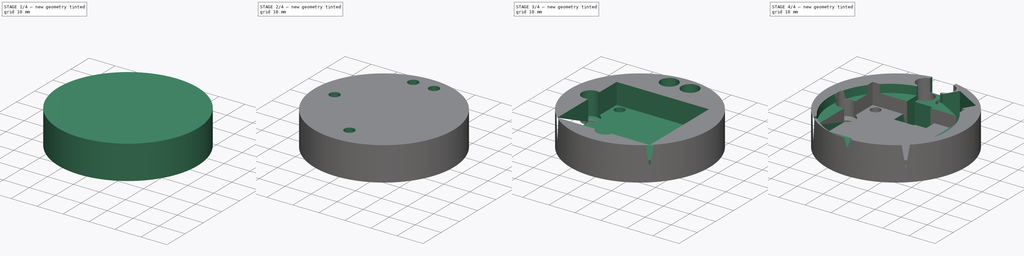
[diagram: build sequence overview — one tinted view per stage of 4, left to right]
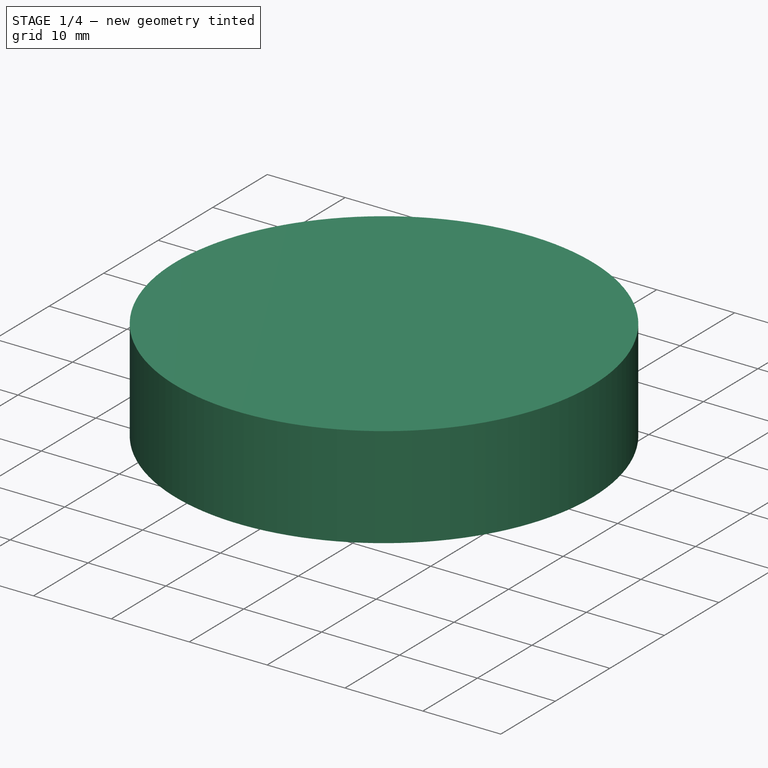
[diagram: stage 1 of 4 — iso view after this stage's code; geometry added in this stage tinted green]
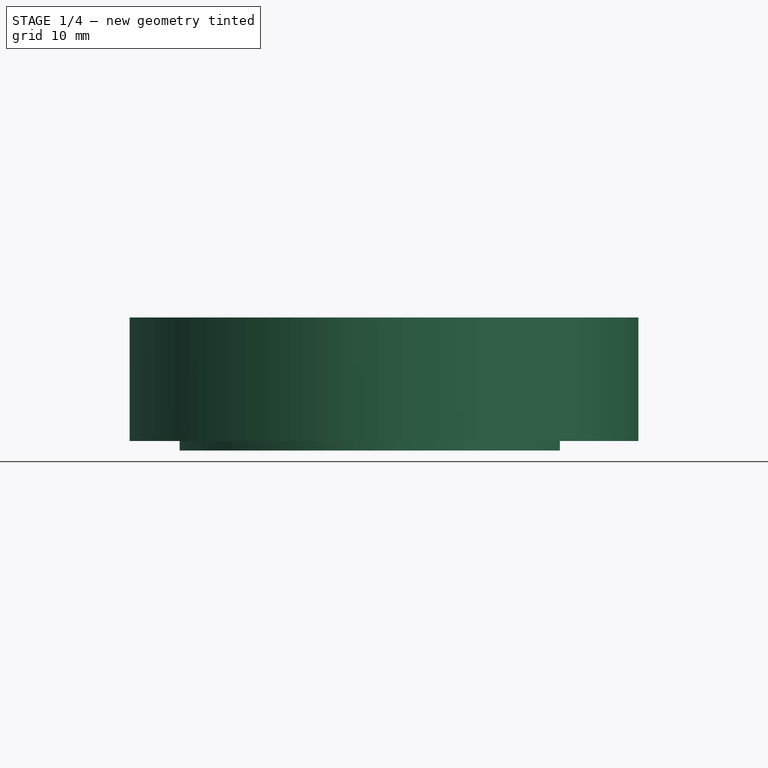
[diagram: stage 1 of 4 — front view after this stage's code; geometry added in this stage tinted green]
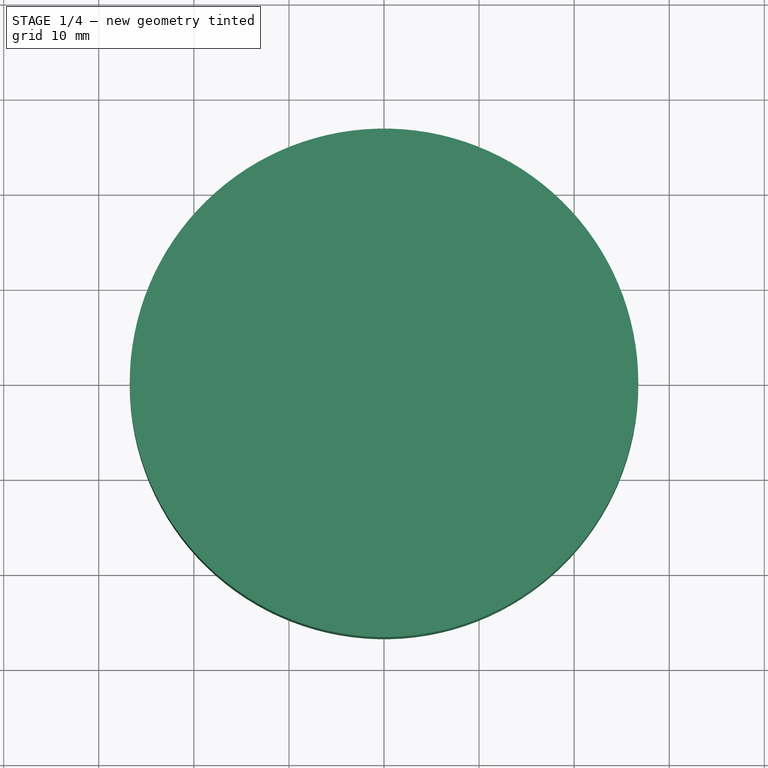
[diagram: stage 1 of 4 — top view after this stage's code; geometry added in this stage tinted green]
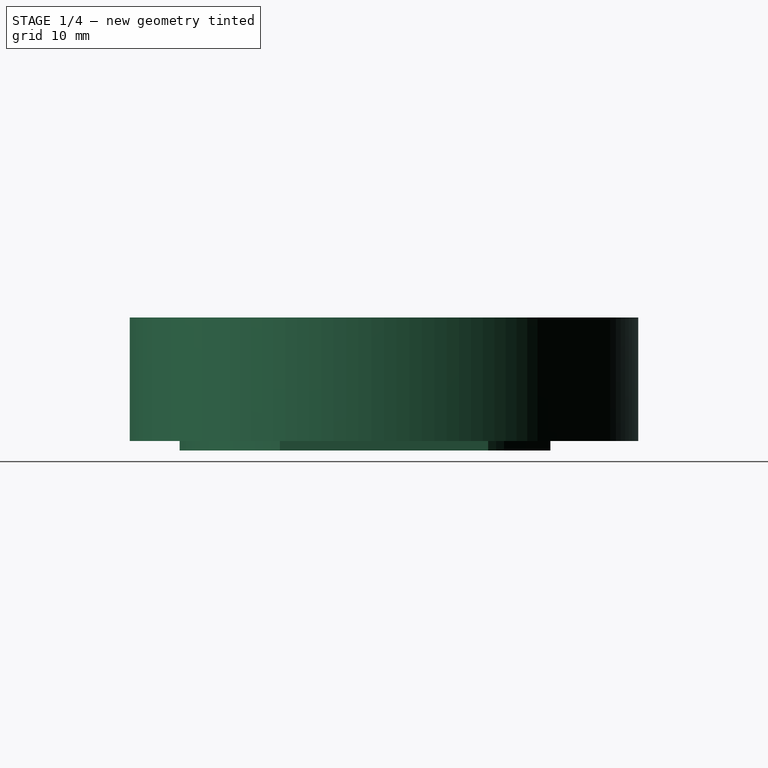
[diagram: stage 1 of 4 — right view after this stage's code; geometry added in this stage tinted green]
FCSTD DOCUMENT  (FreeCAD 0.18.1R)
Label: headset
License: All rights reserved
LicenseURL: http://en.wikipedia.org/wiki/All_rights_reserved
objects: Sketcher::SketchObject×13, PartDesign::Pocket×8, PartDesign::Pad×4, PartDesign::Plane×2, PartDesign::Body×2, PartDesign::Hole×2, PartDesign::ShapeBinder×1, PartDesign::Point×1
note: 47 computed .brp shape members not serialized (recipe doc carries the construction recipe); baked Part::Feature solids carry a one-line shape summary decoded from their .brp

FEATURE [Sketcher::SketchObject] Sketch
  MapMode = 5
  Support = -> [XY_Plane]
  sketch-geometry (1):
    g0: Circle CenterX=0 CenterY=0 CenterZ=0 NormalX=0 NormalY=0 NormalZ=1 AngleXU=0 Radius=21.5
  constraints (2):
    c: Coincident(g0,g-1)
    c: Diameter(g0) = 43
FEATURE [PartDesign::Pad] Pad
  Length = 1
  Length2 = 100
  Profile = -> Sketch
  Refine = true
  Reversed = true
  Type = 0
FEATURE [Sketcher::SketchObject] Sketch001
  ExternalGeometry = -> [Pad]
  MapMode = 5
  Support = -> [XY_Plane]
  sketch-geometry (12):
    g0: GeomPoint X=21.5 Y=0 Z=0
    g1: LineSegment StartX=-12.49 StartY=21.5 StartZ=0 EndX=12.49 EndY=21.5 EndZ=0
    g2: LineSegment StartX=12.49 StartY=21.5 StartZ=0 EndX=12.49 EndY=17.5 EndZ=0
    g3: LineSegment StartX=12.49 StartY=17.5 StartZ=0 EndX=-12.49 EndY=17.5 EndZ=0
    g4: LineSegment StartX=-12.49 StartY=17.5 StartZ=0 EndX=-12.49 EndY=21.5 EndZ=0
    g5: LineSegment StartX=18.5 StartY=10.9545 StartZ=0 EndX=22.5 EndY=10.9545 EndZ=0
    g6: LineSegment StartX=22.5 StartY=10.9545 StartZ=0 EndX=22.5 EndY=-10.9545 EndZ=0
    g7: LineSegment StartX=22.5 StartY=-10.9545 StartZ=0 EndX=18.5 EndY=-10.9545 EndZ=0
    g8: LineSegment StartX=18.5 StartY=-10.9545 StartZ=0 EndX=18.5 EndY=10.9545 EndZ=0
    g9: Circle CenterX=10.247 CenterY=8 CenterZ=0 NormalX=0 NormalY=0 NormalZ=1 AngleXU=0 Radius=2
    g10: Circle CenterX=10.247 CenterY=-8 CenterZ=0 NormalX=0 NormalY=0 NormalZ=1 AngleXU=0 Radius=2
    g11: GeomPoint X=0 Y=21.5 Z=0
  constraints (33):
    c: PointOnObject(g0,g-3)
    c: PointOnObject(g0,g-1)
    c: Coincident(g1,g2)
    c: Coincident(g2,g3)
    c: Coincident(g3,g4)
    c: Coincident(g4,g1)
    c: Horizontal(g1)
    c: Horizontal(g3)
    c: Vertical(g2)
    c: Vertical(g4)
    c: Coincident(g5,g6)
    c: Coincident(g6,g7)
    c: Coincident(g7,g8)
    c: Coincident(g8,g5)
    c: Horizontal(g5)
    c: Horizontal(g7)
    c: Vertical(g6)
    c: Vertical(g8)
    c: PointOnObject(g5,g-3)
    c: PointOnObject(g7,g-3)
    c: DistanceX(g5,g0) = 3
    c: DistanceX(g5,g5) = 4
    c: DistanceY(g2,g2) = 4
    c: Equal(g9,g10)
    c: DistanceY(g10,g9) = 16
    c: Diameter(g9) = 4
    c: Distance(g9,g-1) = 13
    c: Symmetric(g9,g10,g-1)
    c: PointOnObject(g3,g-3)
    c: PointOnObject(g2,g-3)
    c: PointOnObject(g11,g-3)
    c: PointOnObject(g11,g-2)
    c: DistanceY(g3,g11) = 4
FEATURE [PartDesign::Pocket] Pocket
  BaseFeature = -> Pad
  Length = 5
  Length2 = 100
  Profile = -> Sketch001
  Refine = true
  Type = 1
FEATURE [Sketcher::SketchObject] Sketch002
  ExternalGeometry = -> [Pocket]
  MapMode = 5
  Support = -> [Pocket]
  sketch-geometry (10):
    g0: LineSegment StartX=-10.5 StartY=10.5 StartZ=0 EndX=-10.5 EndY=-10.5 EndZ=0
    g1: LineSegment StartX=-10.5 StartY=-10.5 StartZ=0 EndX=-12.5 EndY=-10.5 EndZ=0
    g2: LineSegment StartX=-12.5 StartY=-10.5 StartZ=0 EndX=-12.5 EndY=10.5 EndZ=0
    g3: LineSegment StartX=-14.4 StartY=10.5 StartZ=0 EndX=-14.4 EndY=-10.5 EndZ=0
    g4: LineSegment StartX=-14.4 StartY=-10.5 StartZ=0 EndX=-16.4 EndY=-10.5 EndZ=0
    g5: LineSegment StartX=-16.4 StartY=-10.5 StartZ=0 EndX=-16.4 EndY=10.5 EndZ=0
    g6: LineSegment StartX=-14.4 StartY=10.5 StartZ=0 EndX=-12.5 EndY=10.5 EndZ=0
    g7: LineSegment StartX=-10.5 StartY=10.5 StartZ=0 EndX=-10.5 EndY=12.5 EndZ=0
    g8: LineSegment StartX=-10.5 StartY=12.5 StartZ=0 EndX=-16.4 EndY=12.5 EndZ=0
    g9: LineSegment StartX=-16.4 StartY=12.5 StartZ=0 EndX=-16.4 EndY=10.5 EndZ=0
  constraints (29):
    c: Coincident(g0,g1)
    c: Coincident(g1,g2)
    c: Horizontal(g1)
    c: Vertical(g0)
    c: Vertical(g2)
    c: Coincident(g3,g4)
    c: Coincident(g4,g5)
    c: Horizontal(g4)
    c: Vertical(g3)
    c: DistanceX(g1,g-3) = 31
    c: DistanceX(g2,g0) = 2
    c: DistanceX(g5,g3) = 2
    c: DistanceX(g3,g1) = 1.9
    c: DistanceY(g5,g5) = 21
    c: Horizontal(g3,g2)
    c: Horizontal(g3,g1)
    c: Symmetric(g5,g4,g-1)
    c: Coincident(g7,g8)
    c: Coincident(g8,g9)
    c: Horizontal(g8)
    c: Vertical(g7)
    c: Vertical(g9)
    c: Equal(g7,g1)
    c: Coincident(g3,g6)
    c: Coincident(g2,g6)
    c: Horizontal(g5,g3)
    c: Coincident(g5,g9)
    c: Coincident(g0,g7)
    c: Equal(g7,g9)
FEATURE [PartDesign::Pad] Pad001
  BaseFeature = -> Pocket
  Length = 2
  Length2 = 100
  Profile = -> Sketch002
  Refine = true
  Type = 0
FEATURE [PartDesign::Body] Body  label="base"
  Group = -> [Sketch,Pad,Sketch001,Pocket,Sketch002,Pad001,Sketch003,Pad002,DatumPlane,Sketch004,Pocket001]
  Origin = -> Origin
  Tip = -> Pocket001
FEATURE [Sketcher::SketchObject] Sketch005
  MapMode = 5
  Support = -> [XY_Plane001]
  sketch-geometry (1):
    g0: Circle CenterX=0 CenterY=0 CenterZ=0 NormalX=0 NormalY=0 NormalZ=1 AngleXU=0 Radius=26.75
  constraints (2):
    c: Coincident(g0,g-1)
    c: Diameter(g0) = 53.5
FEATURE [PartDesign::Pad] Pad003
  Length = 13
  Length2 = 100
  Profile = -> Sketch005
  Refine = true
  Type = 0
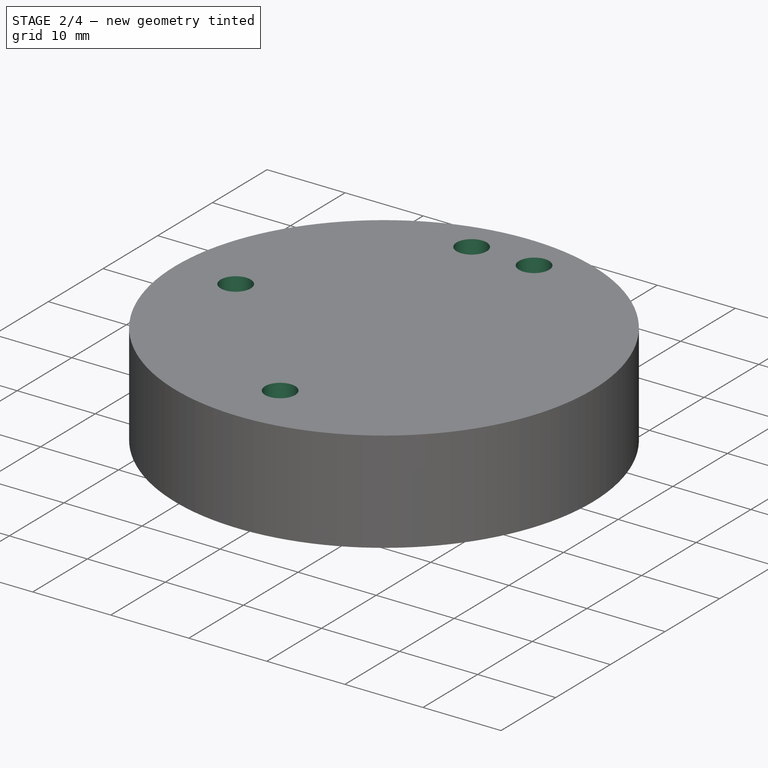
[diagram: stage 2 of 4 — iso view after this stage's code; geometry added in this stage tinted green]
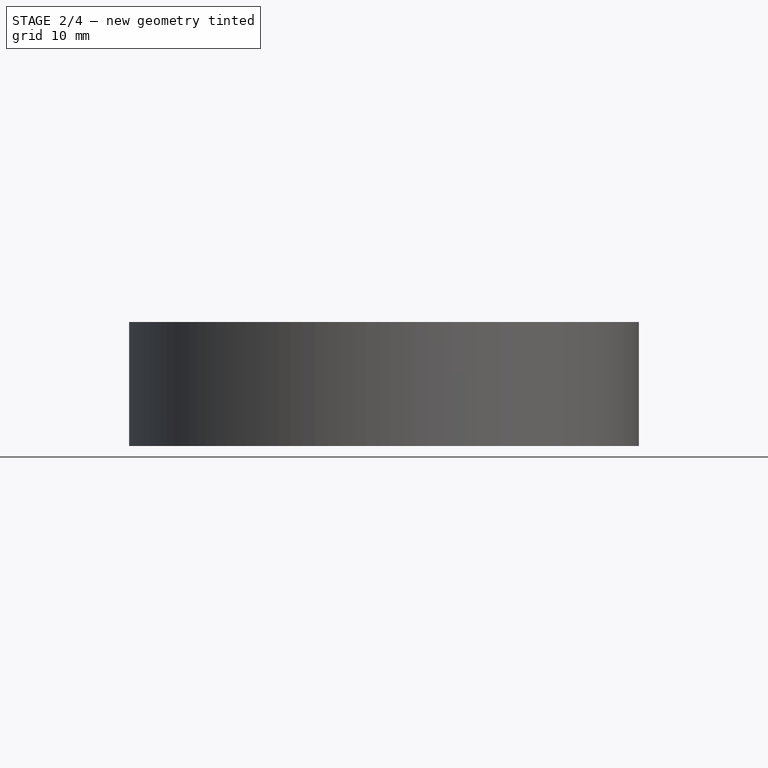
[diagram: stage 2 of 4 — front view after this stage's code; geometry added in this stage tinted green]
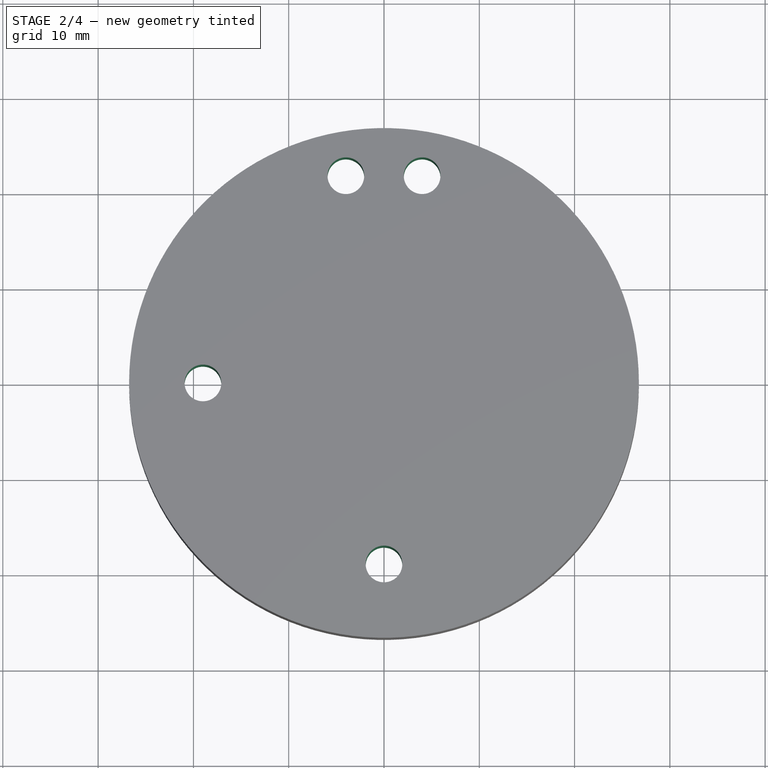
[diagram: stage 2 of 4 — top view after this stage's code; geometry added in this stage tinted green]
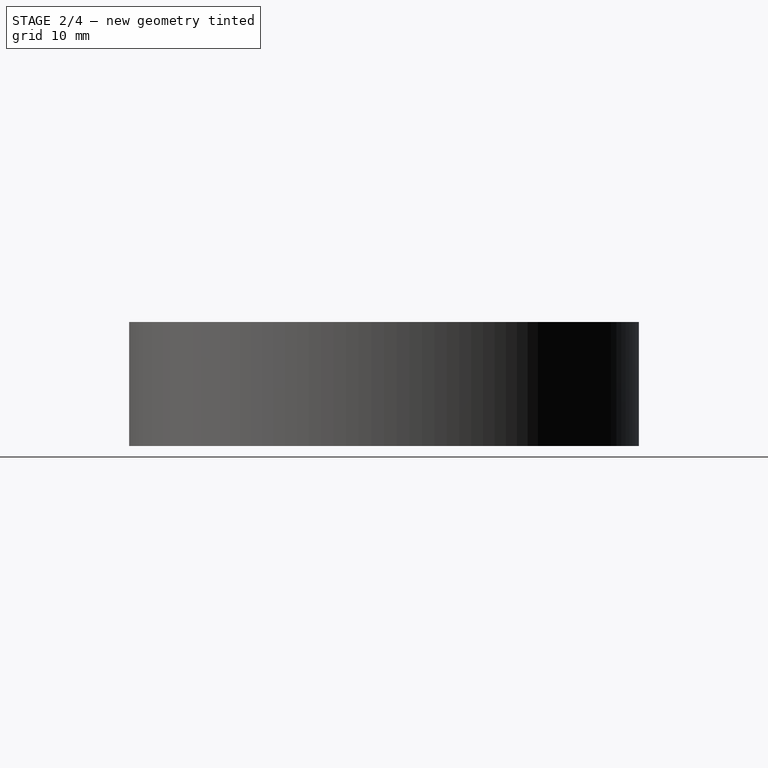
[diagram: stage 2 of 4 — right view after this stage's code; geometry added in this stage tinted green]
FEATURE [Sketcher::SketchObject] Sketch003
  ExternalGeometry = -> [Pad001]
  MapMode = 5
  Support = -> [XY_Plane]
  sketch-geometry (6):
    g0: ArcOfCircle CenterX=0 CenterY=0 CenterZ=0 NormalX=0 NormalY=0 NormalZ=1 AngleXU=0 Radius=21.5 StartAngle=2.80997 EndAngle=3.84477
    g1: ArcOfCircle CenterX=0 CenterY=0 CenterZ=0 NormalX=0 NormalY=0 NormalZ=1 AngleXU=0 Radius=21.5 StartAngle=4.01643 EndAngle=5.40834
    g2: LineSegment StartX=-13.784 StartY=-16.5 StartZ=0 EndX=13.784 EndY=-16.5 EndZ=0
    g3: GeomPoint X=0 Y=-21.5 Z=0
    g4: LineSegment StartX=-20.3286 StartY=7 StartZ=0 EndX=-16.4 EndY=7 EndZ=0
    g5: LineSegment StartX=-16.4 StartY=7 StartZ=0 EndX=-16.4 EndY=-13.9029 EndZ=0
  constraints (18):
    c: Coincident(g0,g-1)
    c: PointOnObject(g0,g-3)
    c: Coincident(g1,g0)
    c: PointOnObject(g1,g-3)
    c: Coincident(g2,g1)
    c: Coincident(g2,g1)
    c: Horizontal(g2)
    c: PointOnObject(g3,g-2)
    c: PointOnObject(g3,g1)
    c: DistanceY(g3,g1) = 5
    c: Coincident(g4,g0)
    c: Horizontal(g4)
    c: Coincident(g5,g4)
    c: Coincident(g5,g0)
    c: Vertical(g5)
    c: Vertical(g4,g-4)
    c: DistanceY(g0,g4) = 7
    c: DistanceY(g1,g-5) = 27
FEATURE [PartDesign::Pad] Pad002
  BaseFeature = -> Pad001
  Length = 20
  Length2 = 100
  Profile = -> Sketch003
  Refine = true
  Type = 0
FEATURE [PartDesign::Plane] DatumPlane
  Length = 47.8973
  MapMode = 2
  Placement = pos=(0,0,20) rot=(0,0,1;0rad)
  ResizeMode = 0
  Width = 46.8992
FEATURE [Sketcher::SketchObject] Sketch004
  MapMode = 5
  Placement = pos=(0,0,20) rot=(0,0,1;0rad)
  Support = -> [DatumPlane]
  sketch-geometry (2):
    g0: Circle CenterX=-19 CenterY=0 CenterZ=0 NormalX=0 NormalY=0 NormalZ=1 AngleXU=0 Radius=1.9
    g1: Circle CenterX=0 CenterY=-19 CenterZ=0 NormalX=0 NormalY=0 NormalZ=1 AngleXU=0 Radius=1.9
  constraints (6):
    c: PointOnObject(g0,g-1)
    c: PointOnObject(g1,g-2)
    c: Equal(g0,g1)
    c: Diameter(g0) = 3.8
    c: DistanceX(g0,g-1) = 19
    c: DistanceY(g1,g-1) = 19
FEATURE [PartDesign::Pocket] Pocket001
  BaseFeature = -> Pad002
  Length = 5
  Length2 = 100
  Profile = -> Sketch004
  Refine = true
  Type = 0
FEATURE [PartDesign::ShapeBinder] ShapeBinder
  Support = -> [Pocket001]
  TraceSupport = false
FEATURE [Sketcher::SketchObject] Sketch006
  ExternalGeometry = -> [ShapeBinder,Pad003]
  MapMode = 5
  Placement = pos=(0,0,13) rot=(0,0,1;0rad)
  Support = -> [Pad003]
  sketch-geometry (5):
    g0: Circle CenterX=-19 CenterY=0 CenterZ=0 NormalX=0 NormalY=0 NormalZ=1 AngleXU=0 Radius=0.5
    g1: Circle CenterX=0 CenterY=-19 CenterZ=0 NormalX=0 NormalY=0 NormalZ=1 AngleXU=0 Radius=0.5
    g2: Circle CenterX=-4 CenterY=21.75 CenterZ=0 NormalX=0 NormalY=0 NormalZ=1 AngleXU=0 Radius=0.5
    g3: Circle CenterX=4 CenterY=21.75 CenterZ=0 NormalX=0 NormalY=0 NormalZ=1 AngleXU=0 Radius=0.5
    g4: GeomPoint X=0 Y=26.75 Z=0
  constraints (11):
    c: Coincident(g1,g-4)
    c: Symmetric(g2,g3,g-2)
    c: Coincident(g0,g-3)
    c: Equal(g3,g2)
    c: Equal(g2,g0)
    c: Equal(g0,g1)
    c: DistanceX(g2,g3) = 8
    c: PointOnObject(g4,g-5)
    c: PointOnObject(g4,g-2)
    c: DistanceY(g2,g4) = 5
    c: Diameter(g3) = 1
FEATURE [PartDesign::Hole] Hole
  BaseFeature = -> Pad003
  Depth = 5
  DepthType = 1
  Diameter = 3.85
  DrillPoint = 1
  DrillPointAngle = 118
  HoleCutCountersinkAngle = 90
  HoleCutDepth = 0
  HoleCutDiameter = 3.5
  HoleCutType = 0
  ModelActualThread = false
  Profile = -> Sketch006
  Refine = true
  Tapered = false
  TaperedAngle = 90
  ThreadAngle = 0
  ThreadClass = 0
  ThreadCutOffInner = 0
  ThreadCutOffOuter = 0
  ThreadDirection = 0
  ThreadFit = 0
  ThreadPitch = 0
  ThreadSize = 10
  ThreadType = 2
  Threaded = false
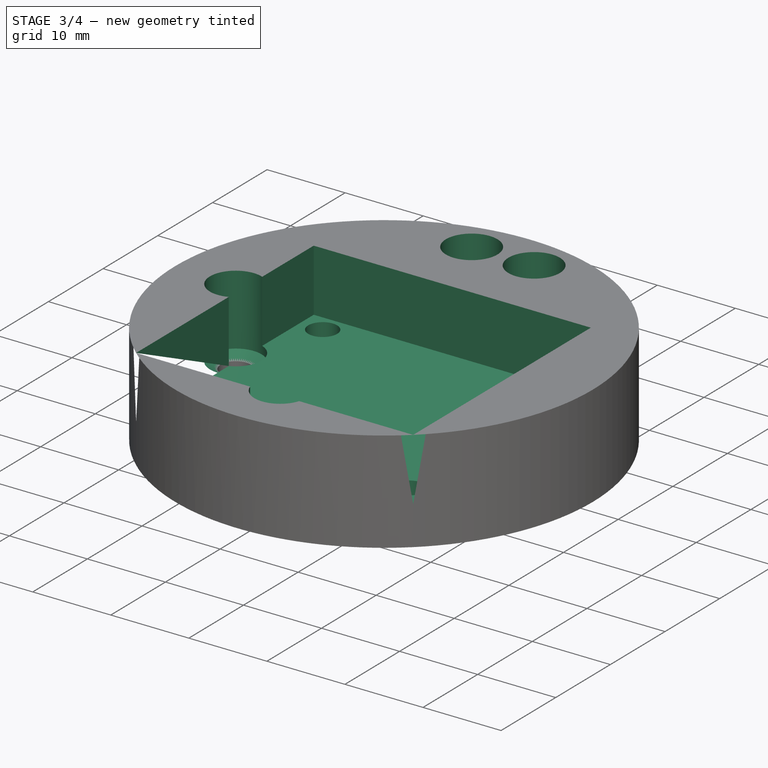
[diagram: stage 3 of 4 — iso view after this stage's code; geometry added in this stage tinted green]
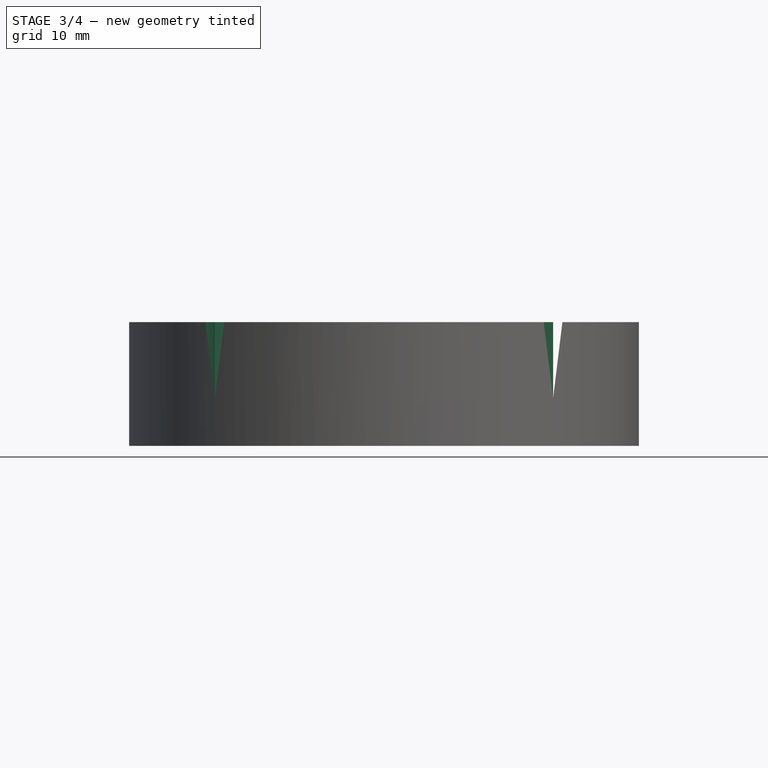
[diagram: stage 3 of 4 — front view after this stage's code; geometry added in this stage tinted green]
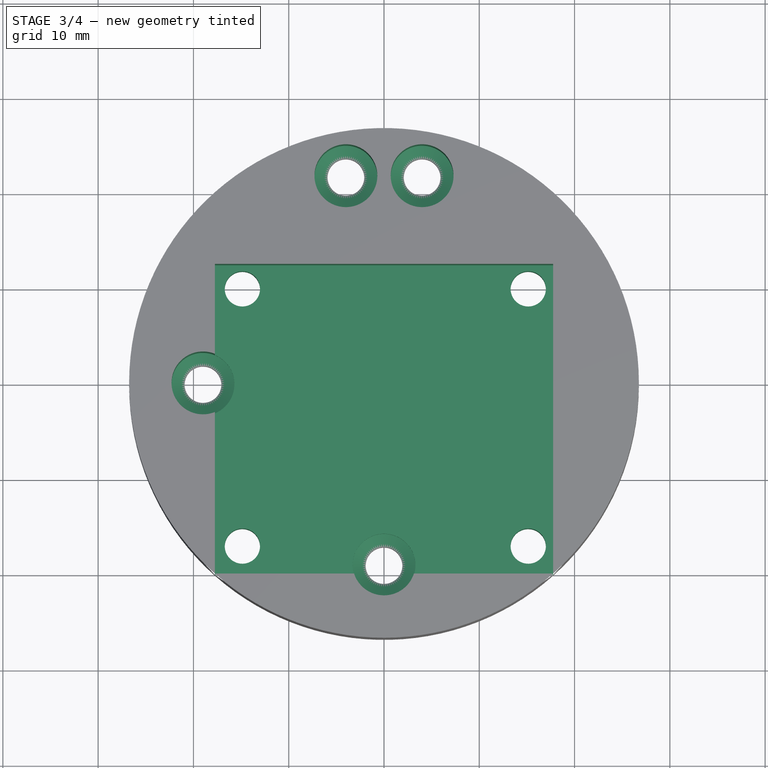
[diagram: stage 3 of 4 — top view after this stage's code; geometry added in this stage tinted green]
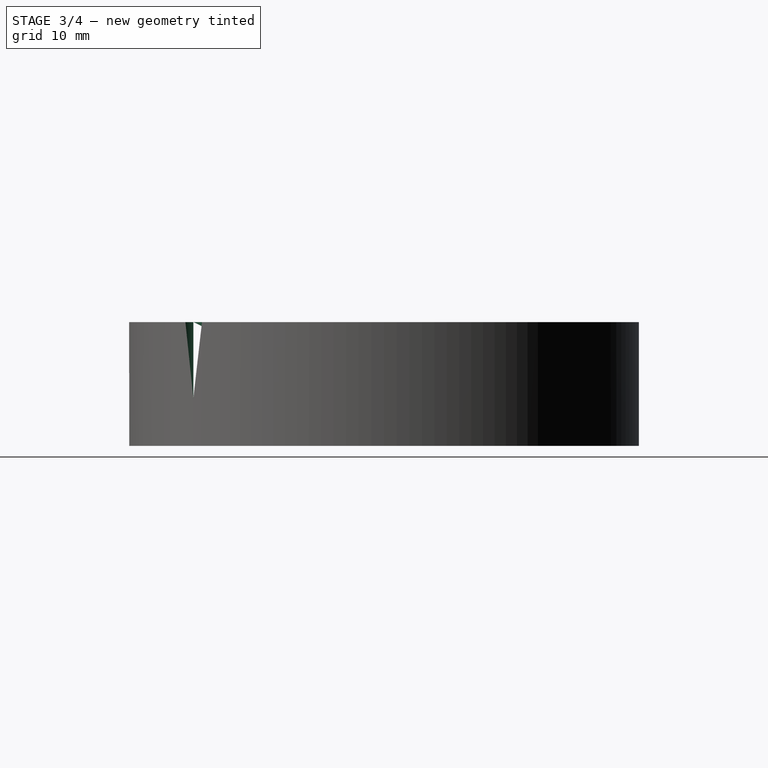
[diagram: stage 3 of 4 — right view after this stage's code; geometry added in this stage tinted green]
FEATURE [PartDesign::Hole] Hole001
  BaseFeature = -> Hole
  Depth = 11
  DepthType = 0
  Diameter = 6.6
  DrillPoint = 1
  DrillPointAngle = 118
  HoleCutCountersinkAngle = 90
  HoleCutDepth = 0
  HoleCutDiameter = 6
  HoleCutType = 0
  ModelActualThread = false
  Profile = -> Sketch006
  Refine = true
  Tapered = false
  TaperedAngle = 90
  ThreadAngle = 0
  ThreadClass = 0
  ThreadCutOffInner = 0
  ThreadCutOffOuter = 0
  ThreadDirection = 0
  ThreadFit = 0
  ThreadPitch = 0
  ThreadSize = 7
  ThreadType = 1
  Threaded = false
FEATURE [PartDesign::Plane] DatumPlane001  label="Upper Surface"
  Length = 64.1923
  MapMode = 5
  Placement = pos=(0,0,13) rot=(0,0,1;0rad)
  ResizeMode = 0
  Support = -> [Pad003]
  Width = 64.173
FEATURE [Sketcher::SketchObject] Sketch007
  ExternalGeometry = -> [Hole001]
  MapMode = 5
  Placement = pos=(0,0,13) rot=(0,0,1;0rad)
  Support = -> [DatumPlane001]
  sketch-geometry (4):
    g0: LineSegment StartX=-17.75 StartY=12.4875 StartZ=0 EndX=17.75 EndY=12.4875 EndZ=0
    g1: LineSegment StartX=17.75 StartY=12.4875 StartZ=0 EndX=17.75 EndY=-20.0125 EndZ=0
    g2: LineSegment StartX=17.75 StartY=-20.0125 StartZ=0 EndX=-17.75 EndY=-20.0125 EndZ=0
    g3: LineSegment StartX=-17.75 StartY=-20.0125 StartZ=0 EndX=-17.75 EndY=12.4875 EndZ=0
  constraints (12):
    c: Coincident(g0,g1)
    c: Coincident(g1,g2)
    c: Coincident(g2,g3)
    c: Coincident(g3,g0)
    c: Horizontal(g0)
    c: Horizontal(g2)
    c: Vertical(g1)
    c: Vertical(g3)
    c: PointOnObject(g1,g-3)
    c: PointOnObject(g2,g-3)
    c: DistanceX(g0,g0) = 35.5
    c: DistanceY(g3,g3) = 32.5
FEATURE [PartDesign::Pocket] Pocket002  label="oled_hole"
  BaseFeature = -> Hole001
  Length = 8
  Length2 = 100
  Profile = -> Sketch007
  Refine = true
  Type = 0
FEATURE [PartDesign::Point] DatumPoint  label="oled_centre"
  AttacherType = Attacher::AttachEnginePoint
  MapMode = 37
  Placement = pos=(0.136578,-3.48942,5) rot=(0,0,1;0rad)
  Support = -> [Pocket002]
FEATURE [Sketcher::SketchObject] Sketch008
  ExternalGeometry = -> [DatumPoint]
  MapMode = 5
  Placement = pos=(0,0,5) rot=(0,0,1;0rad)
  Support = -> [Pocket002]
  sketch-geometry (8):
    g0: LineSegment [constr] StartX=-14.8634 StartY=10.0106 StartZ=0 EndX=15.1366 EndY=10.0106 EndZ=0
    g1: LineSegment [constr] StartX=15.1366 StartY=10.0106 StartZ=0 EndX=15.1366 EndY=-16.9894 EndZ=0
    g2: LineSegment [constr] StartX=15.1366 StartY=-16.9894 StartZ=0 EndX=-14.8634 EndY=-16.9894 EndZ=0
    g3: LineSegment [constr] StartX=-14.8634 StartY=-16.9894 StartZ=0 EndX=-14.8634 EndY=10.0106 EndZ=0
    g4: Circle CenterX=-14.8634 CenterY=10.0106 CenterZ=0 NormalX=0 NormalY=0 NormalZ=1 AngleXU=0 Radius=1.85
    g5: Circle CenterX=15.1366 CenterY=10.0106 CenterZ=0 NormalX=0 NormalY=0 NormalZ=1 AngleXU=0 Radius=1.85
    g6: Circle CenterX=15.1366 CenterY=-16.9894 CenterZ=0 NormalX=0 NormalY=0 NormalZ=1 AngleXU=0 Radius=1.85
    g7: Circle CenterX=-14.8634 CenterY=-16.9894 CenterZ=0 NormalX=0 NormalY=0 NormalZ=1 AngleXU=0 Radius=1.85
  constraints (19):
    c: Coincident(g0,g1)
    c: Coincident(g1,g2)
    c: Coincident(g2,g3)
    c: Coincident(g3,g0)
    c: Horizontal(g0)
    c: Horizontal(g2)
    c: Vertical(g1)
    c: Vertical(g3)
    c: Symmetric(g2,g0,g-3)
    c: DistanceX(g2,g2) = 30
    c: DistanceY(g3,g3) = 27
    c: Coincident(g4,g0)
    c: Coincident(g5,g0)
    c: Coincident(g6,g1)
    c: Coincident(g7,g2)
    c: Equal(g4,g5)
    c: Equal(g5,g6)
    c: Equal(g6,g7)
    c: Diameter(g4) = 3.7
FEATURE [PartDesign::Pocket] Pocket003  label="oled_mounts"
  BaseFeature = -> Pocket002
  Length = 5
  Length2 = 100
  Profile = -> Sketch008
  Refine = true
  Type = 1
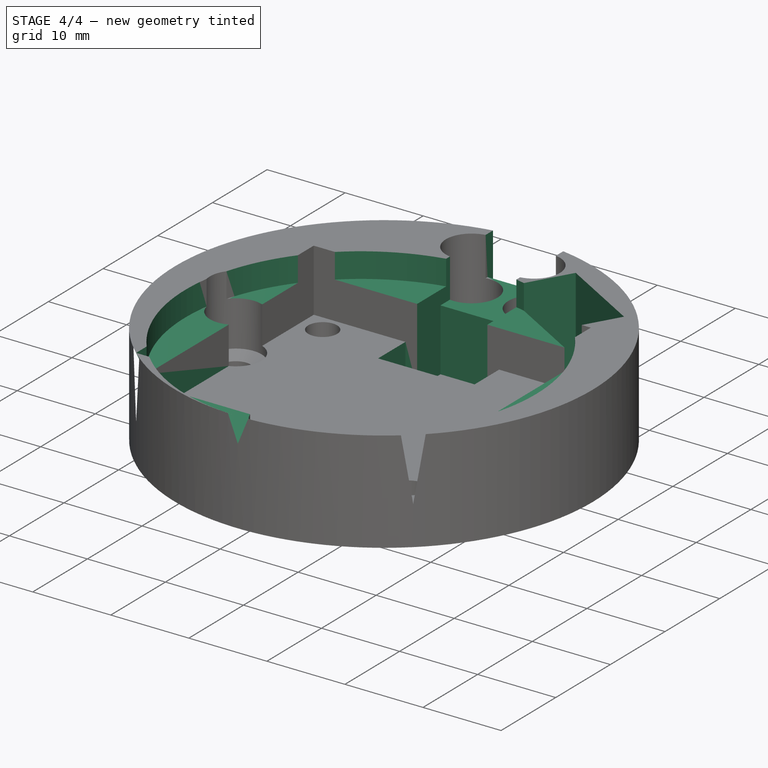
[diagram: stage 4 of 4 — iso view after this stage's code; geometry added in this stage tinted green]
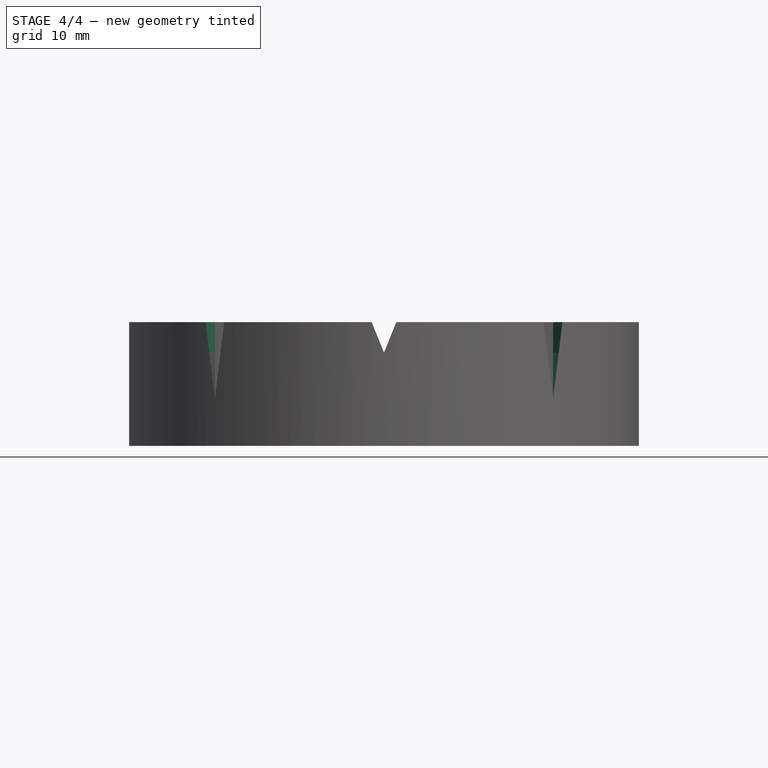
[diagram: stage 4 of 4 — front view after this stage's code; geometry added in this stage tinted green]
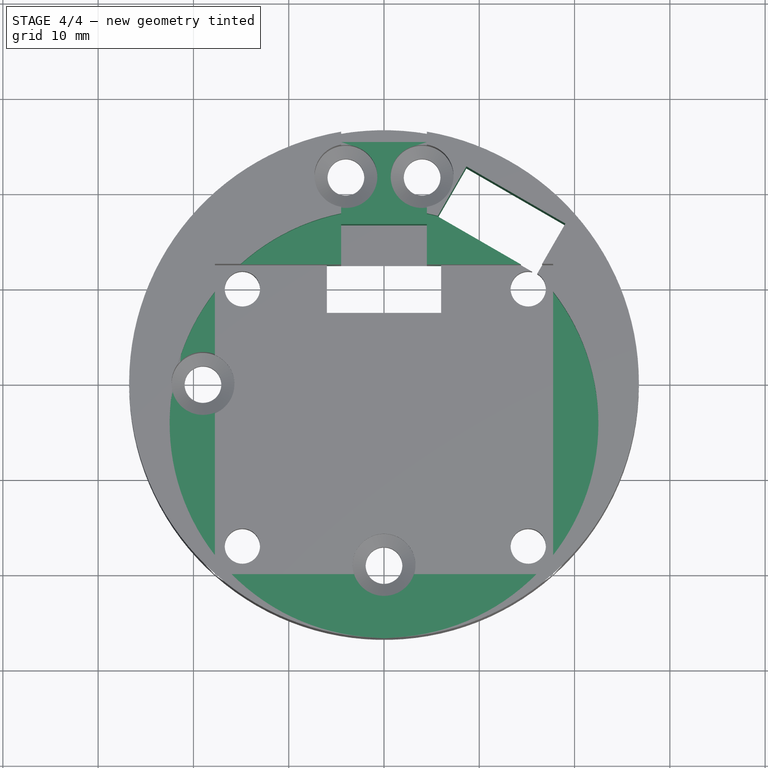
[diagram: stage 4 of 4 — top view after this stage's code; geometry added in this stage tinted green]
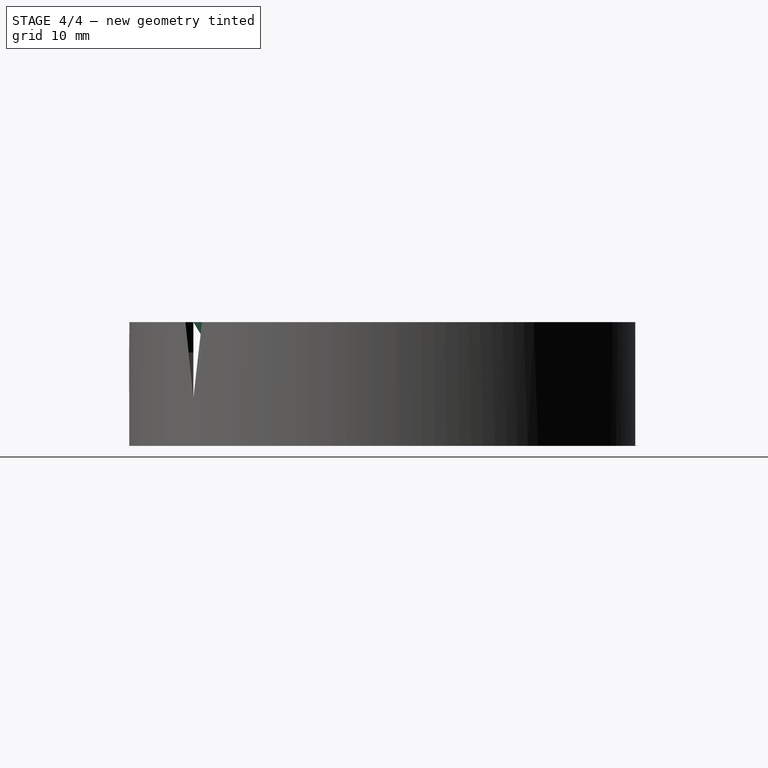
[diagram: stage 4 of 4 — right view after this stage's code; geometry added in this stage tinted green]
FEATURE [Sketcher::SketchObject] Sketch009
  ExternalGeometry = -> [Pocket003]
  MapMode = 5
  Placement = pos=(0,0,13) rot=(0,0,1;0rad)
  Support = -> [DatumPlane001]
  sketch-geometry (2):
    g0: Circle CenterX=0 CenterY=-4.25 CenterZ=0 NormalX=0 NormalY=0 NormalZ=1 AngleXU=0 Radius=22.5
    g1: GeomPoint X=0 Y=-26.75 Z=0
  constraints (5):
    c: PointOnObject(g1,g-2)
    c: PointOnObject(g1,g0)
    c: PointOnObject(g1,g-3)
    c: Diameter(g0) = 45
    c: PointOnObject(g0,g-2)
FEATURE [PartDesign::Pocket] Pocket004  label="neopixels"
  BaseFeature = -> Pocket003
  Length = 3.2
  Length2 = 100
  Profile = -> Sketch009
  Refine = true
  Type = 0
FEATURE [Sketcher::SketchObject] Sketch010
  ExternalGeometry = -> [Pocket004]
  MapMode = 5
  Placement = pos=(0,0,13) rot=(0,0,1;0rad)
  Support = -> [DatumPlane001]
  sketch-geometry (9):
    g0: LineSegment StartX=-6 StartY=12.4875 StartZ=0 EndX=6 EndY=12.4875 EndZ=0
    g1: LineSegment StartX=6 StartY=12.4875 StartZ=0 EndX=6 EndY=7.4875 EndZ=0
    g2: LineSegment StartX=6 StartY=7.4875 StartZ=0 EndX=-6 EndY=7.4875 EndZ=0
    g3: LineSegment StartX=-6 StartY=7.4875 StartZ=0 EndX=-6 EndY=12.4875 EndZ=0
    g4: LineSegment [constr] StartX=0 StartY=-4.25 StartZ=0 EndX=11.25 EndY=15.2356 EndZ=0
    g5: LineSegment StartX=8.64647 StartY=22.7261 StartZ=0 EndX=19.0388 EndY=16.7261 EndZ=0
    g6: LineSegment StartX=19.0388 StartY=16.7261 StartZ=0 EndX=16.0388 EndY=11.53 EndZ=0
    g7: LineSegment StartX=16.0388 StartY=11.53 StartZ=0 EndX=5.64647 EndY=17.53 EndZ=0
    g8: LineSegment StartX=5.64647 StartY=17.53 StartZ=0 EndX=8.64647 EndY=22.7261 EndZ=0
  constraints (25):
    c: Coincident(g0,g1)
    c: Coincident(g1,g2)
    c: Coincident(g2,g3)
    c: Coincident(g3,g0)
    c: Horizontal(g0)
    c: Vertical(g1)
    c: Vertical(g3)
    c: PointOnObject(g0,g-3)
    c: DistanceX(g2,g2) = 12
    c: Symmetric(g2,g1,g-2)
    c: DistanceY(g1,g1) = 5
    c: Coincident(g4,g-4)
    c: PointOnObject(g4,g-4)
    c: Angle(g4,g-2) = 0.523599
    c: Coincident(g5,g6)
    c: Coincident(g6,g7)
    c: Coincident(g7,g8)
    c: Coincident(g8,g5)
    c: Distance(g5) = 12
    c: Parallel(g8,g6)
    c: Parallel(g5,g7)
    c: Perpendicular(g6,g7)
    c: Symmetric(g7,g6,g4)
    c: PointOnObject(g7,g-4)
    c: Distance(g8) = 6
FEATURE [PartDesign::Pocket] Pocket005  label="cable opening"
  BaseFeature = -> Pocket004
  Length = 5
  Length2 = 100
  Profile = -> Sketch010
  Refine = true
  Type = 1
FEATURE [Sketcher::SketchObject] Sketch011
  ExternalGeometry = -> [Pocket005]
  MapMode = 5
  Placement = pos=(0,0,13) rot=(0,0,1;0rad)
  Support = -> [DatumPlane001]
  sketch-geometry (4):
    g0: LineSegment StartX=-4.5 StartY=26.75 StartZ=0 EndX=4.5 EndY=26.75 EndZ=0
    g1: LineSegment StartX=4.5 StartY=26.75 StartZ=0 EndX=4.5 EndY=16.75 EndZ=0
    g2: LineSegment StartX=4.5 StartY=16.75 StartZ=0 EndX=-4.5 EndY=16.75 EndZ=0
    g3: LineSegment StartX=-4.5 StartY=16.75 StartZ=0 EndX=-4.5 EndY=26.75 EndZ=0
  constraints (11):
    c: Coincident(g0,g1)
    c: Coincident(g1,g2)
    c: Coincident(g2,g3)
    c: Coincident(g3,g0)
    c: Horizontal(g0)
    c: Vertical(g1)
    c: Vertical(g3)
    c: Symmetric(g2,g1,g-2)
    c: DistanceY(g3,g3) = 10
    c: DistanceX(g0,g0) = 9
    c: Tangent(g0,g-3)
FEATURE [PartDesign::Pocket] Pocket006  label="Camera"
  BaseFeature = -> Pocket005
  Length = 5
  Length2 = 100
  Profile = -> Sketch011
  Refine = true
  Type = 0
FEATURE [Sketcher::SketchObject] Sketch012
  ExternalGeometry = -> [Pocket006,Pad003]
  MapMode = 5
  Placement = pos=(0,0,8) rot=(0,0,1;0rad)
  Support = -> [Pocket006]
  sketch-geometry (9):
    g0: LineSegment StartX=-4.5 StartY=25.3688 StartZ=0 EndX=4.5 EndY=25.3688 EndZ=0
    g1: LineSegment StartX=4.5 StartY=25.3688 StartZ=0 EndX=4.5 EndY=28.3688 EndZ=0
    g2: LineSegment StartX=4.5 StartY=28.3688 StartZ=0 EndX=-4.5 EndY=28.3688 EndZ=0
    g3: LineSegment StartX=-4.5 StartY=28.3688 StartZ=0 EndX=-4.5 EndY=25.3688 EndZ=0
    g4: GeomPoint X=-4.5 Y=26.3688 Z=0
    g5: LineSegment StartX=-4.5 StartY=16.75 StartZ=0 EndX=4.5 EndY=16.75 EndZ=0
    g6: LineSegment StartX=4.5 StartY=16.75 StartZ=0 EndX=4.5 EndY=12.4875 EndZ=0
    g7: LineSegment StartX=4.5 StartY=12.4875 StartZ=0 EndX=-4.5 EndY=12.4875 EndZ=0
    g8: LineSegment StartX=-4.5 StartY=12.4875 StartZ=0 EndX=-4.5 EndY=16.75 EndZ=0
  constraints (23):
    c: Coincident(g0,g3)
    c: Coincident(g2,g3)
    c: Coincident(g0,g1)
    c: Coincident(g1,g2)
    c: PointOnObject(g4,g3)
    c: PointOnObject(g4,g-4)
    c: DistanceY(g0,g4) = 1
    c: Symmetric(g2,g1,g-2)
    c: DistanceX(g0,g0) = 9
    c: Horizontal(g0)
    c: Vertical(g1)
    c: Vertical(g3)
    c: DistanceY(g1,g1) = 3
    c: Coincident(g5,g6)
    c: Coincident(g6,g7)
    c: Coincident(g7,g8)
    c: Coincident(g8,g5)
    c: Horizontal(g7)
    c: Vertical(g6)
    c: Vertical(g8)
    c: Coincident(g5,g-5)
    c: Coincident(g5,g-5)
    c: PointOnObject(g7,g-6)
FEATURE [PartDesign::Pocket] Pocket007
  BaseFeature = -> Pocket006
  Length = 15.95
  Length2 = 100
  Midplane = true
  Profile = -> Sketch012
  Refine = true
  Type = 0
FEATURE [PartDesign::Body] Body001  label="Upper part"
  Group = -> [Sketch005,Pad003,ShapeBinder,Sketch006,Hole,Hole001,DatumPlane001,Sketch007,Pocket002,DatumPoint,Sketch008,Pocket003,Sketch009,Pocket004,Sketch010,Pocket005,Sketch011,Pocket006,Sketch012,Pocket007]
  Origin = -> Origin001
  Placement = pos=(0,0,25) rot=(0,0,1;0rad)
  Tip = -> Pocket007
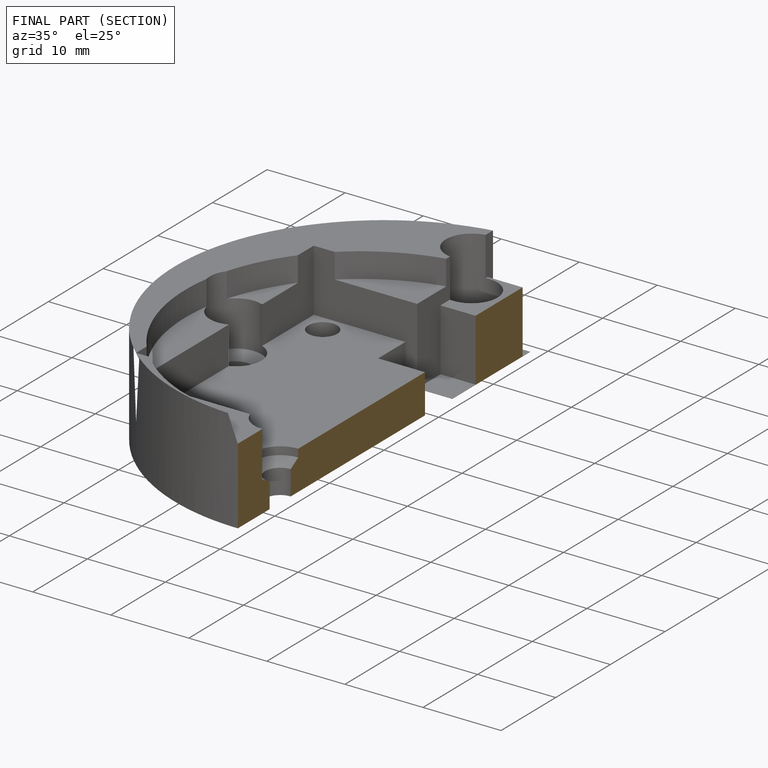
[diagram: finished part — half-section view (interior)]
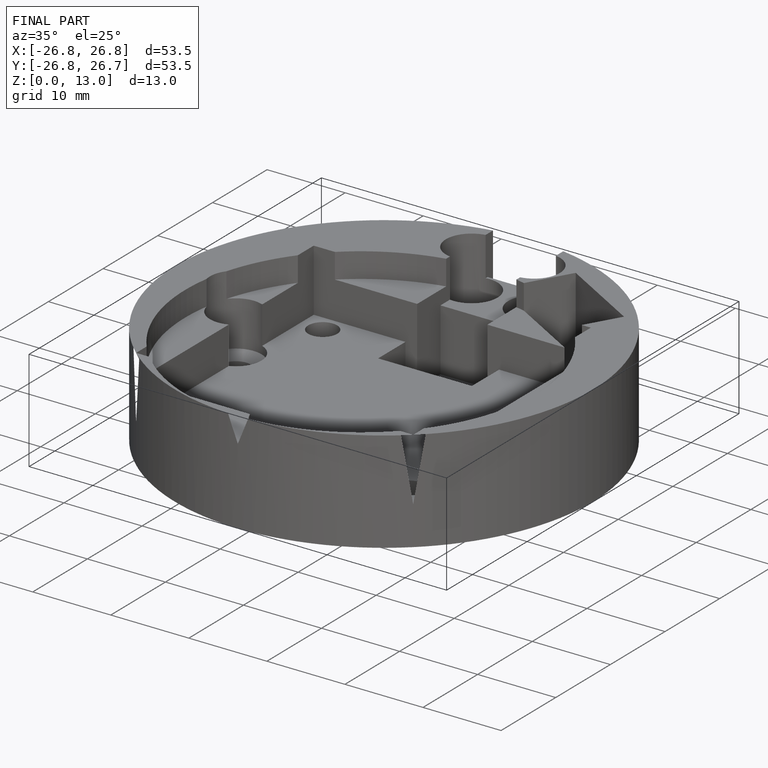
[diagram: finished part — iso view with bounding-box wireframe]
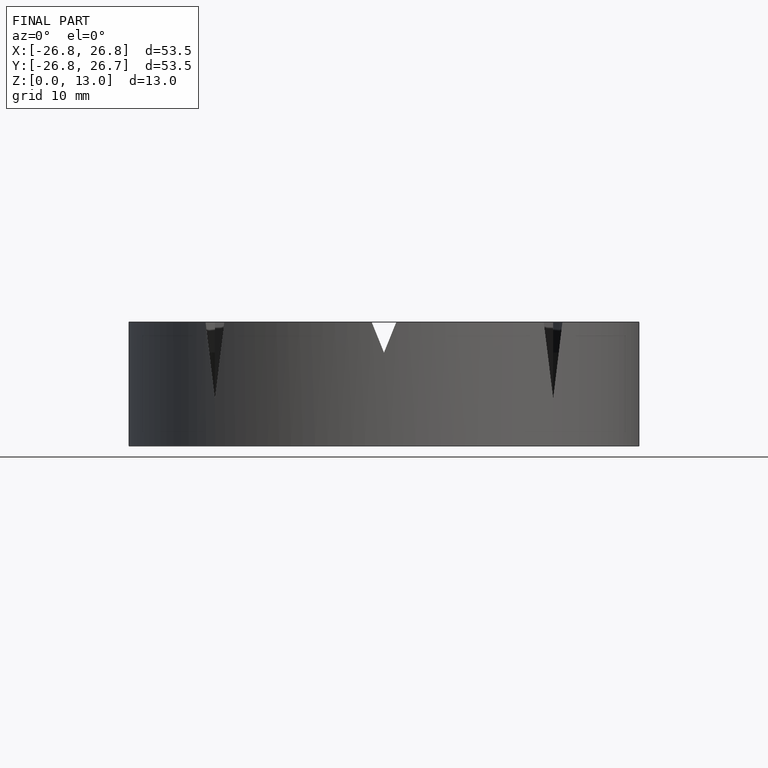
[diagram: finished part — front view with bounding-box wireframe]
